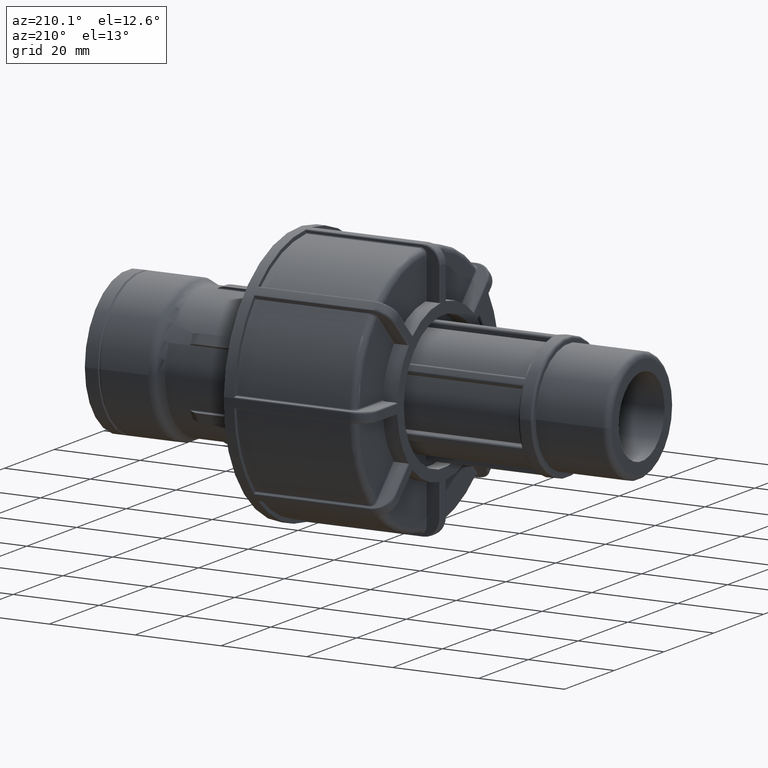
[diagram: clean part render]
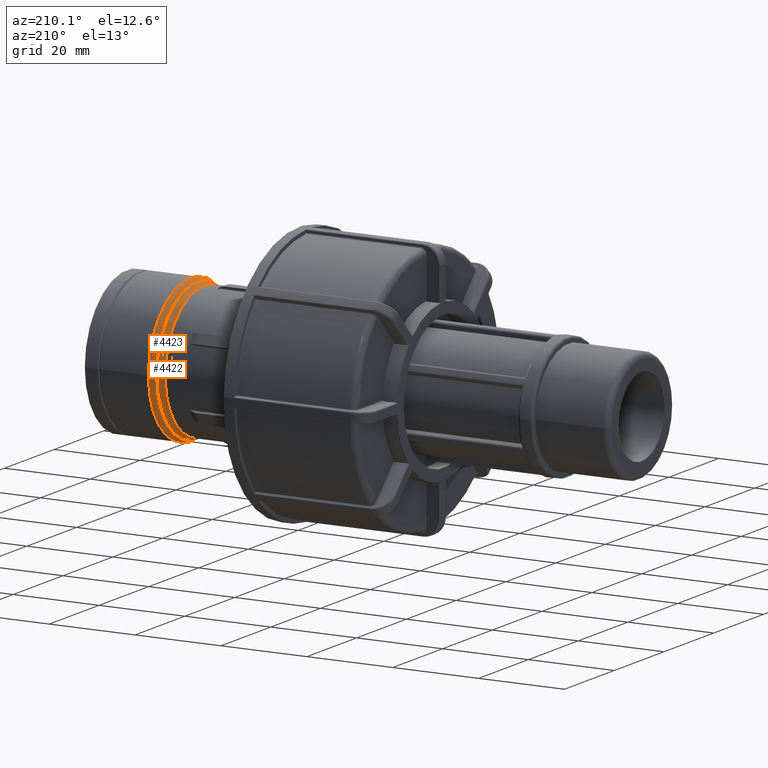
[diagram: same view with one multi-face feature highlighted, each face labeled with its STEP entity id]
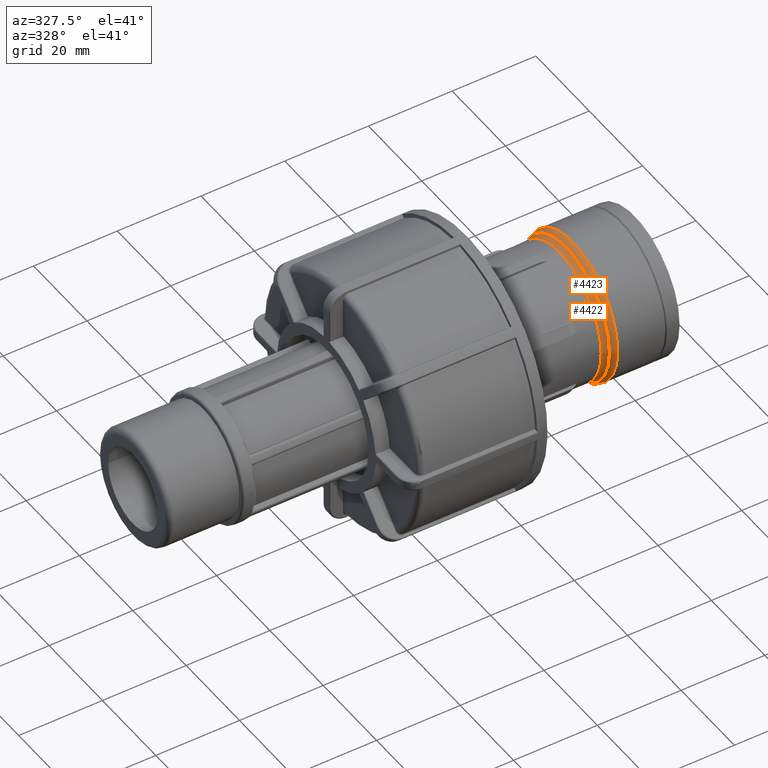
[diagram: same view with one multi-face feature highlighted, each face labeled with its STEP entity id]
A machine part, auxiliary view. The highlighted faces form ONE feature: a constant-radius fillet chain: 2 tangent blend faces with common blend radius 2.4117 mm. The faces share edges in the B-rep.
A second angle (auxiliary view) of the same feature is appended — it is thin or edge-on in the first view.
Their STEP definitions:
[1] entity #4423 (Torus):
#56=FACE_BOUND('',#1182,.T.);
#908=FACE_OUTER_BOUND('',#1181,.T.);
#1181=EDGE_LOOP('',(#3346));
#1182=EDGE_LOOP('',(#3347));
#1620=CIRCLE('',#4756,16.278975);
#1621=CIRCLE('',#4758,16.8819);
#1975=VERTEX_POINT('',#7275);
#1976=VERTEX_POINT('',#7278);
#2487=EDGE_CURVE('',#1975,#1975,#1620,.T.);
#2488=EDGE_CURVE('',#1976,#1976,#1621,.T.);
#3346=ORIENTED_EDGE('',*,*,#2487,.F.);
#3347=ORIENTED_EDGE('',*,*,#2488,.T.);
#4334=TOROIDAL_SURFACE('',#4757,14.4702,2.4117);
#4423=ADVANCED_FACE('',(#908,#56),#4334,.T.);
#4756=AXIS2_PLACEMENT_3D('',#7276,#5485,#5486);
#4757=AXIS2_PLACEMENT_3D('',#7277,#5487,#5488);
#4758=AXIS2_PLACEMENT_3D('',#7279,#5489,#5490);
#5485=DIRECTION('center_axis',(-1.,0.,0.));
#5486=DIRECTION('ref_axis',(0.,1.,-6.12323399573677E-17));
#5487=DIRECTION('center_axis',(1.,0.,0.));
#5488=DIRECTION('ref_axis',(0.,1.,-1.85604082780806E-16));
#5489=DIRECTION('center_axis',(-1.,0.,0.));
#5490=DIRECTION('ref_axis',(0.,1.,-1.85604082780806E-16));
#7275=CARTESIAN_POINT('',(-16.5065961429167,-16.278975,2.99039919407247E-15));
#7276=CARTESIAN_POINT('Origin',(-16.5065961429167,0.,0.));
#7277=CARTESIAN_POINT('Origin',(-14.9114065336931,0.,0.));
#7278=CARTESIAN_POINT('',(-14.9114065336931,-16.8819,5.20078604494986E-15));
#7279=CARTESIAN_POINT('Origin',(-14.9114065336931,0.,0.));
[2] entity #4422 (Torus):
#55=FACE_BOUND('',#1180,.T.);
#907=FACE_OUTER_BOUND('',#1179,.T.);
#1179=EDGE_LOOP('',(#3344));
#1180=EDGE_LOOP('',(#3345));
#1609=CIRCLE('',#4710,15.67605);
#1620=CIRCLE('',#4756,16.278975);
#1951=VERTEX_POINT('',#6991);
#1975=VERTEX_POINT('',#7275);
#2434=EDGE_CURVE('',#1951,#1951,#1609,.T.);
#2487=EDGE_CURVE('',#1975,#1975,#1620,.T.);
#3344=ORIENTED_EDGE('',*,*,#2434,.T.);
#3345=ORIENTED_EDGE('',*,*,#2487,.T.);
#4333=TOROIDAL_SURFACE('',#4755,18.08775,2.4117);
#4422=ADVANCED_FACE('',(#907,#55),#4333,.F.);
#4710=AXIS2_PLACEMENT_3D('',#6992,#5365,#5366);
#4755=AXIS2_PLACEMENT_3D('',#7274,#5483,#5484);
#4756=AXIS2_PLACEMENT_3D('',#7276,#5485,#5486);
#5365=DIRECTION('center_axis',(1.,0.,0.));
#5366=DIRECTION('ref_axis',(0.,1.,-6.12323399573677E-17));
#5483=DIRECTION('center_axis',(1.,0.,0.));
#5484=DIRECTION('ref_axis',(0.,0.,-1.));
#5485=DIRECTION('center_axis',(-1.,0.,0.));
#5486=DIRECTION('ref_axis',(0.,1.,-6.12323399573677E-17));
#6991=CARTESIAN_POINT('',(-18.1017857521403,-15.67605,-9.59881222788693E-16));
#6992=CARTESIAN_POINT('Origin',(-18.1017857521403,0.,0.));
#7274=CARTESIAN_POINT('Origin',(-18.1017857521403,0.,0.));
#7275=CARTESIAN_POINT('',(-16.5065961429167,-16.278975,2.99039919407247E-15));
#7276=CARTESIAN_POINT('Origin',(-16.5065961429167,0.,0.));